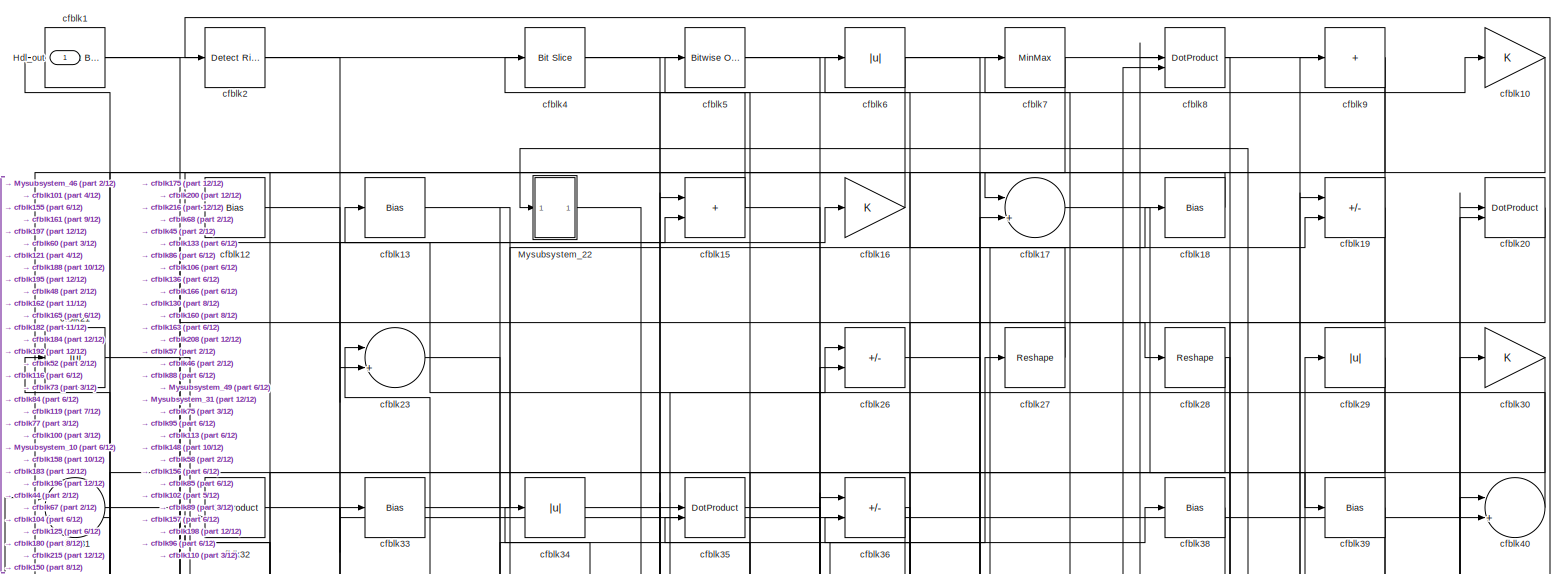
[diagram: root canvas - part 1/12, full width, top band]
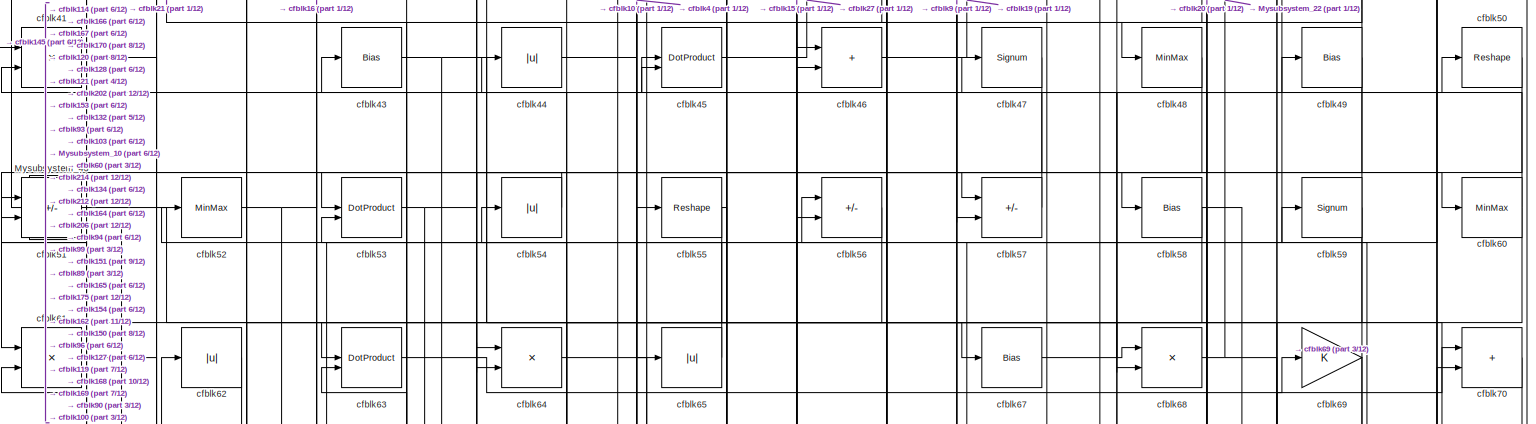
[diagram: root canvas - part 2/12, full width, top band]
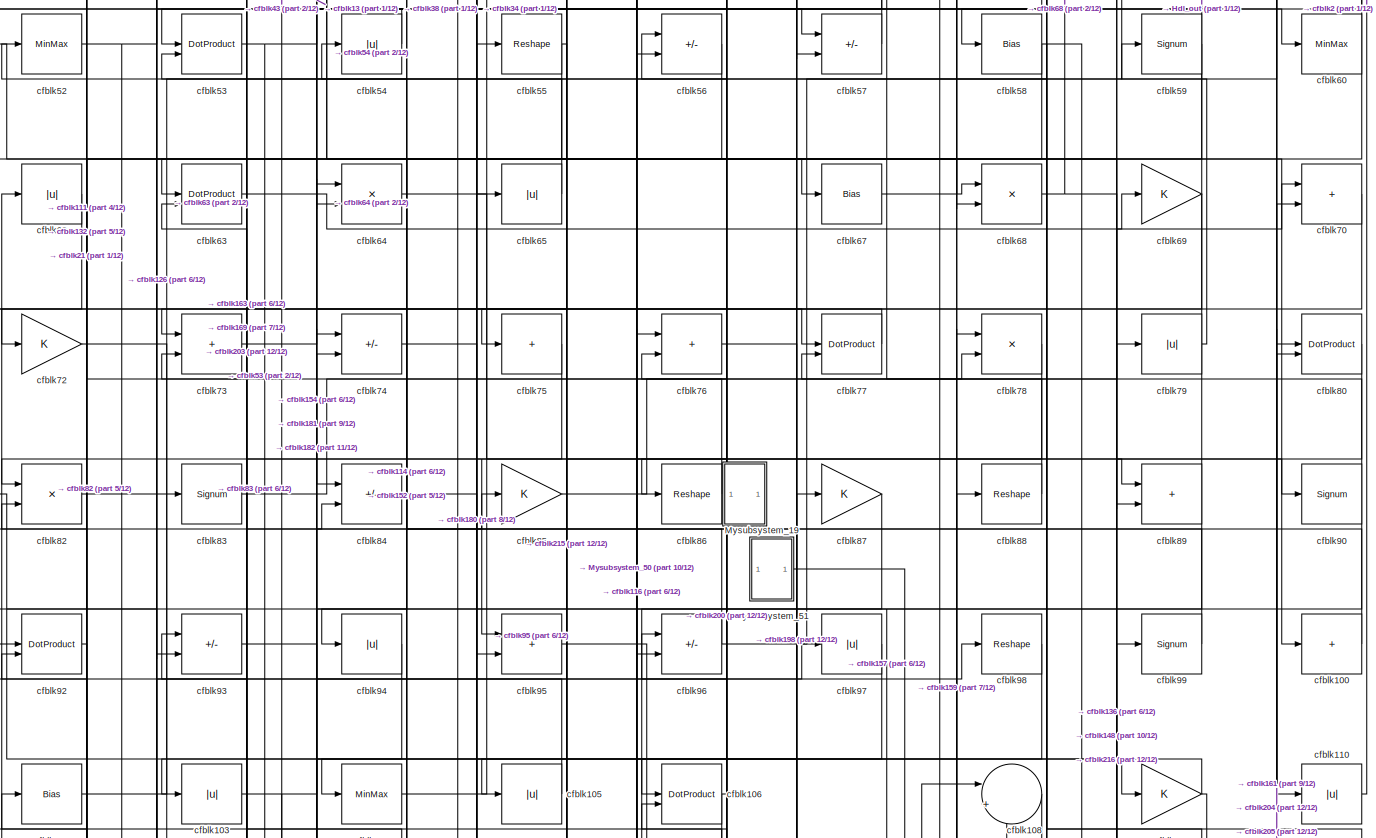
[diagram: root canvas - part 3/12, full width, middle band]
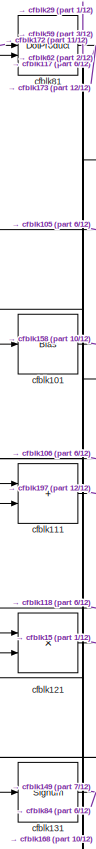
[diagram: root canvas - part 4/12, middle left region]
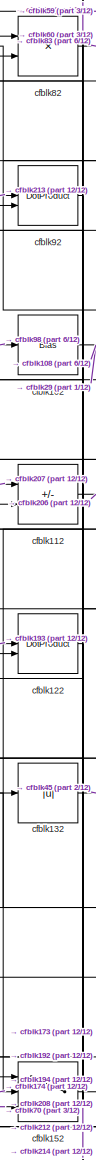
[diagram: root canvas - part 5/12, middle left region]
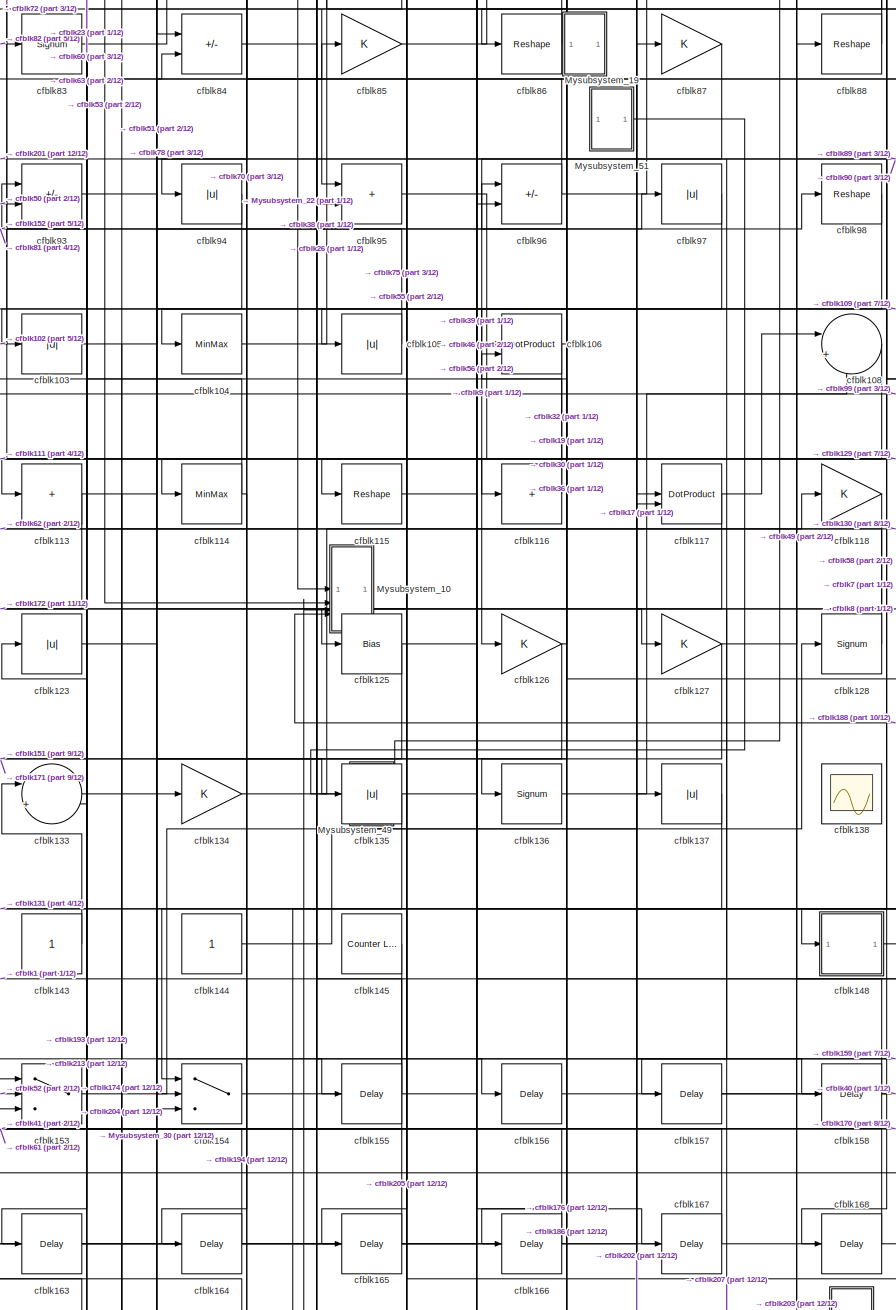
[diagram: root canvas - part 6/12, central region]
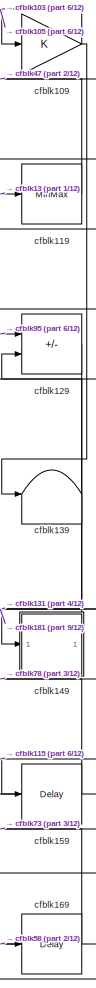
[diagram: root canvas - part 7/12, middle right region]
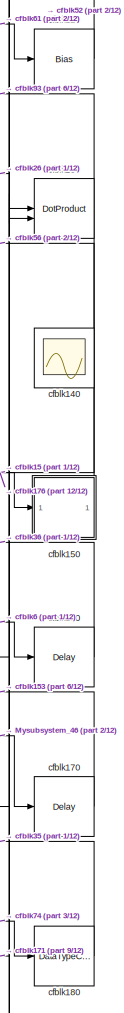
[diagram: root canvas - part 8/12, middle right region]
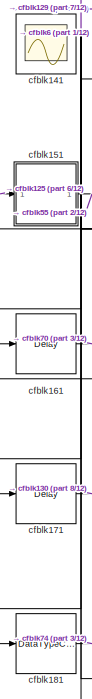
[diagram: root canvas - part 9/12, bottom left region]
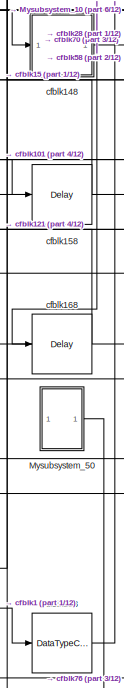
[diagram: root canvas - part 10/12, bottom right region]
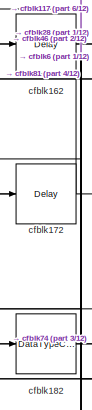
[diagram: root canvas - part 11/12, bottom left region]
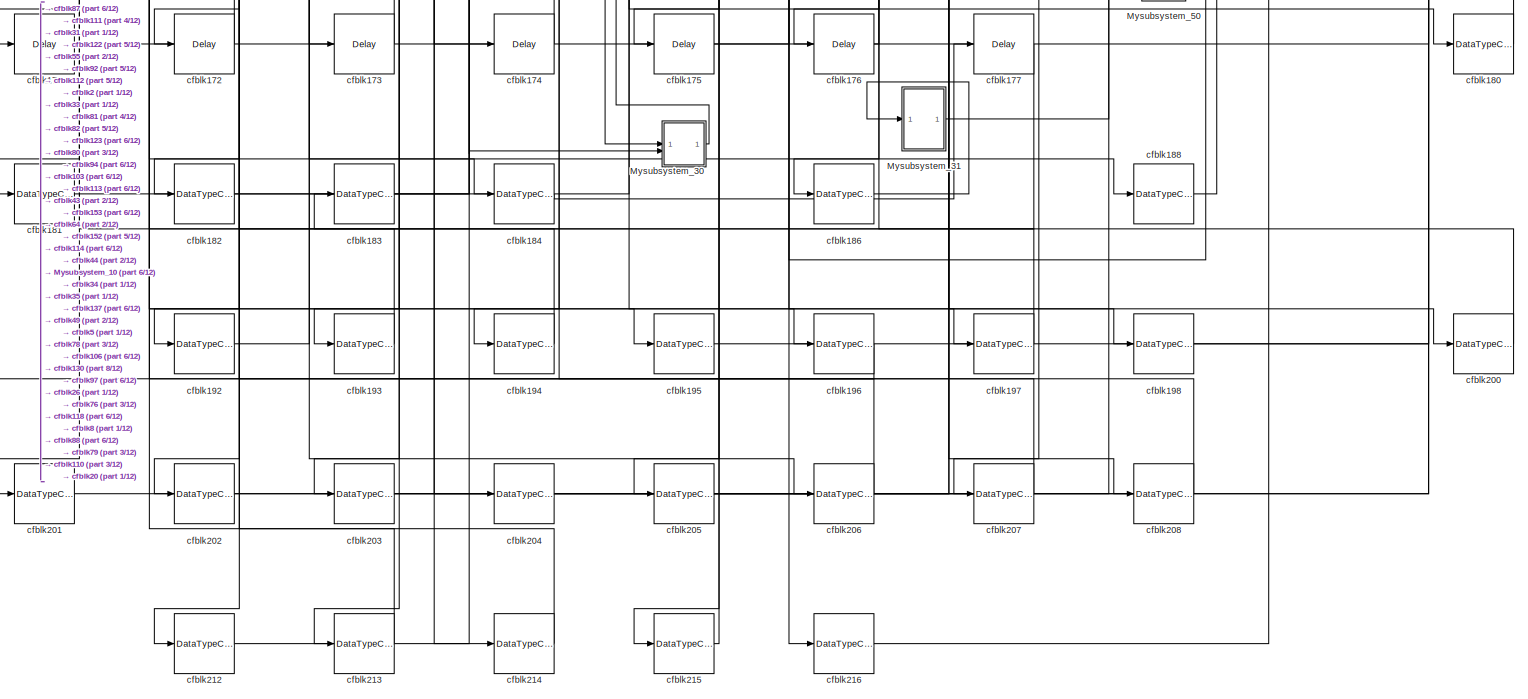
[diagram: root canvas - part 12/12, full width, bottom band]
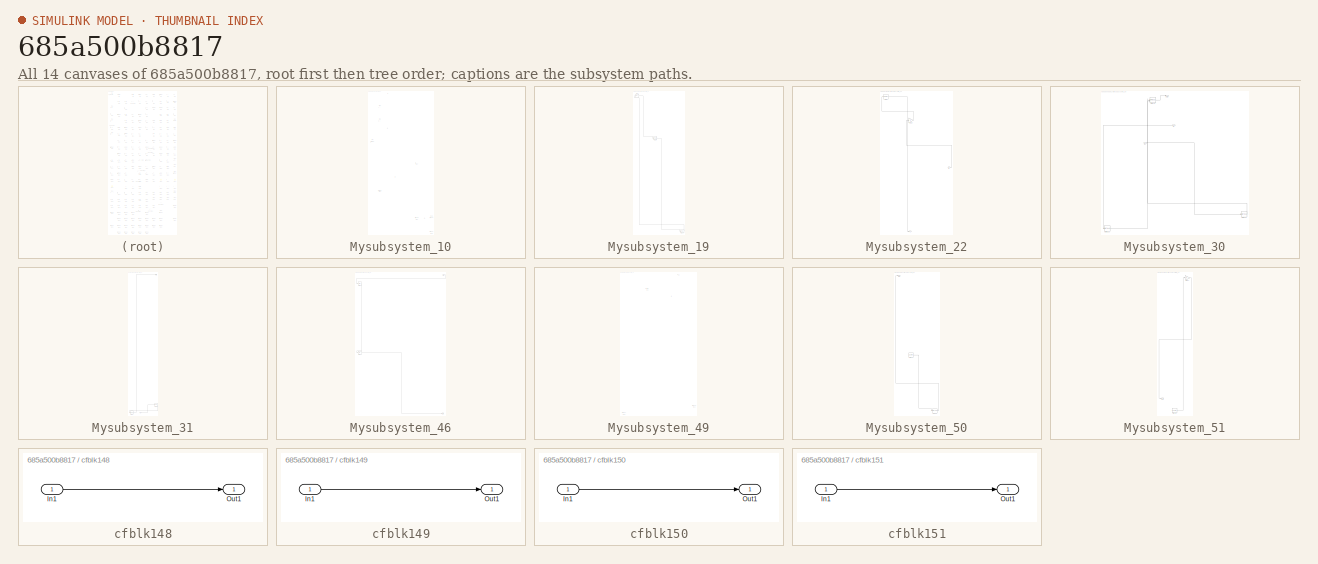
[diagram: thumbnail index - all 14 canvases of the model, root first then tree order]
MODEL slx_685a500b8817
KIND model
CONFIG AbsTol = auto
CONFIG EnableMultiTasking = off
CONFIG FixedStep = auto
CONFIG MaxStep = auto
CONFIG MinStep = auto
CONFIG RelTol = 1e-3
CONFIG SampleTimeConstraint = Unconstrained
CONFIG SolverName = VariableStepAuto
CONFIG StartTime = 0.0
CONFIG StopTime = 10.0
BLOCK [Outport] Hdl_out
  OutDataTypeStr = uint8
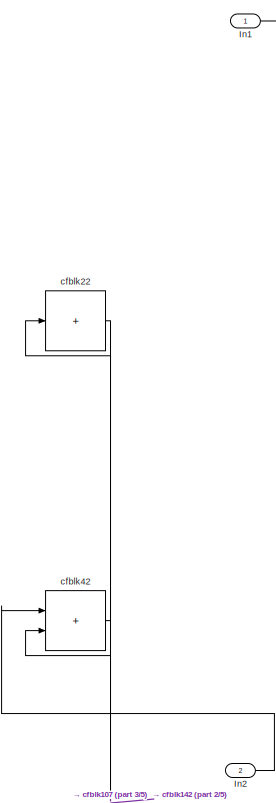
[diagram: Mysubsystem_10 - part 1/5, top left region]
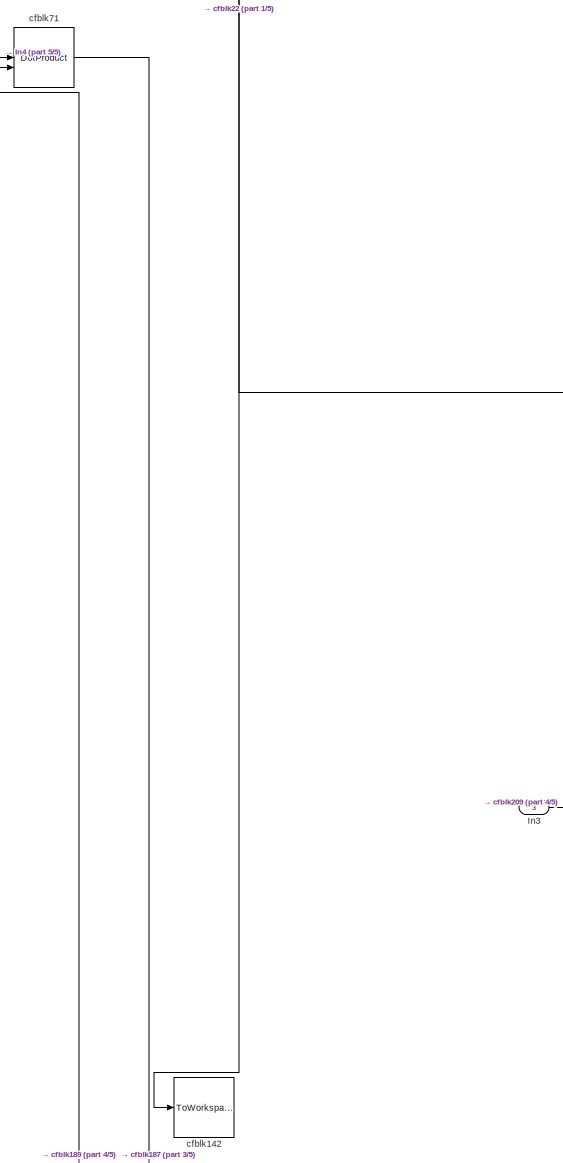
[diagram: Mysubsystem_10 - part 2/5, middle left region]
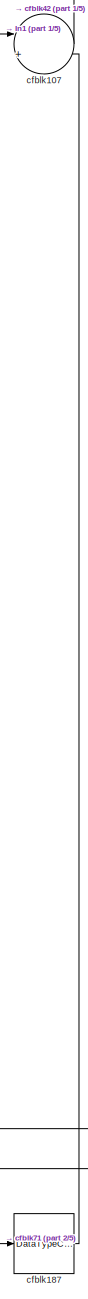
[diagram: Mysubsystem_10 - part 3/5, bottom right region]
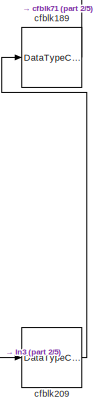
[diagram: Mysubsystem_10 - part 4/5, bottom right region]
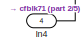
[diagram: Mysubsystem_10 - part 5/5, bottom right region]
BLOCK [SubSystem] Mysubsystem_10
  RTWFcnName = Mysubsystem_10
  RTWFcnNameOpts = User specified
  RTWFileNameOpts = Use function name
  RTWSystemCode = Reusable function
  TreatAsAtomicUnit = on
BLOCK [Inport] Mysubsystem_10/In1
BLOCK [Inport] Mysubsystem_10/In2
  Port = 2
BLOCK [Inport] Mysubsystem_10/In3
  Port = 3
BLOCK [Inport] Mysubsystem_10/In4
  Port = 4
BLOCK [Sum] Mysubsystem_10/cfblk107
  Inputs = |++
BLOCK [ToWorkspace] Mysubsystem_10/cfblk142
  MaxDataPoints = inf
  SampleTime = -1
  SaveFormat = Timeseries
  VariableName = simout
BLOCK [DataTypeConversion] Mysubsystem_10/cfblk187
  OutDataTypeStr = uint8
  RndMeth = Floor
  SaturateOnIntegerOverflow = off
BLOCK [DataTypeConversion] Mysubsystem_10/cfblk189
  OutDataTypeStr = uint8
  RndMeth = Floor
  SaturateOnIntegerOverflow = off
BLOCK [DataTypeConversion] Mysubsystem_10/cfblk209
  OutDataTypeStr = uint8
  RndMeth = Floor
  SaturateOnIntegerOverflow = off
BLOCK [Sum] Mysubsystem_10/cfblk22
  IconShape = rectangular
  Inputs = +
BLOCK [Sum] Mysubsystem_10/cfblk42
  IconShape = rectangular
BLOCK [DotProduct] Mysubsystem_10/cfblk71
  OutDataTypeStr = Inherit: Inherit via internal rule
BLOCK [SubSystem] Mysubsystem_19
  RTWFcnName = Mysubsystem_19
  RTWFcnNameOpts = User specified
  RTWFileNameOpts = Use function name
  RTWSystemCode = Reusable function
  TreatAsAtomicUnit = on
BLOCK [Abs] Mysubsystem_19/cfblk14
  SaturateOnIntegerOverflow = off
BLOCK [Delay] Mysubsystem_19/cfblk179
  InputPortMap = u0
  SampleTime = 1
BLOCK [Reshape] Mysubsystem_19/cfblk66
BLOCK [SubSystem] Mysubsystem_22
  RTWFcnName = Mysubsystem_22
  RTWFcnNameOpts = User specified
  RTWFileNameOpts = Use function name
  RTWSystemCode = Reusable function
  TreatAsAtomicUnit = on
BLOCK [Inport] Mysubsystem_22/In1
BLOCK [Gain] Mysubsystem_22/cfblk25
BLOCK [Reference] Mysubsystem_22/cfblk3  REF=hdlsllib/Logic and Bit
Operations/Compare
To Zero
  SourceBlock = hdlsllib/Logic and Bit\nOperations/Compare\nTo Zero
  SourceType = Compare To Zero
BLOCK [Outport] Mysubsystem_22/y
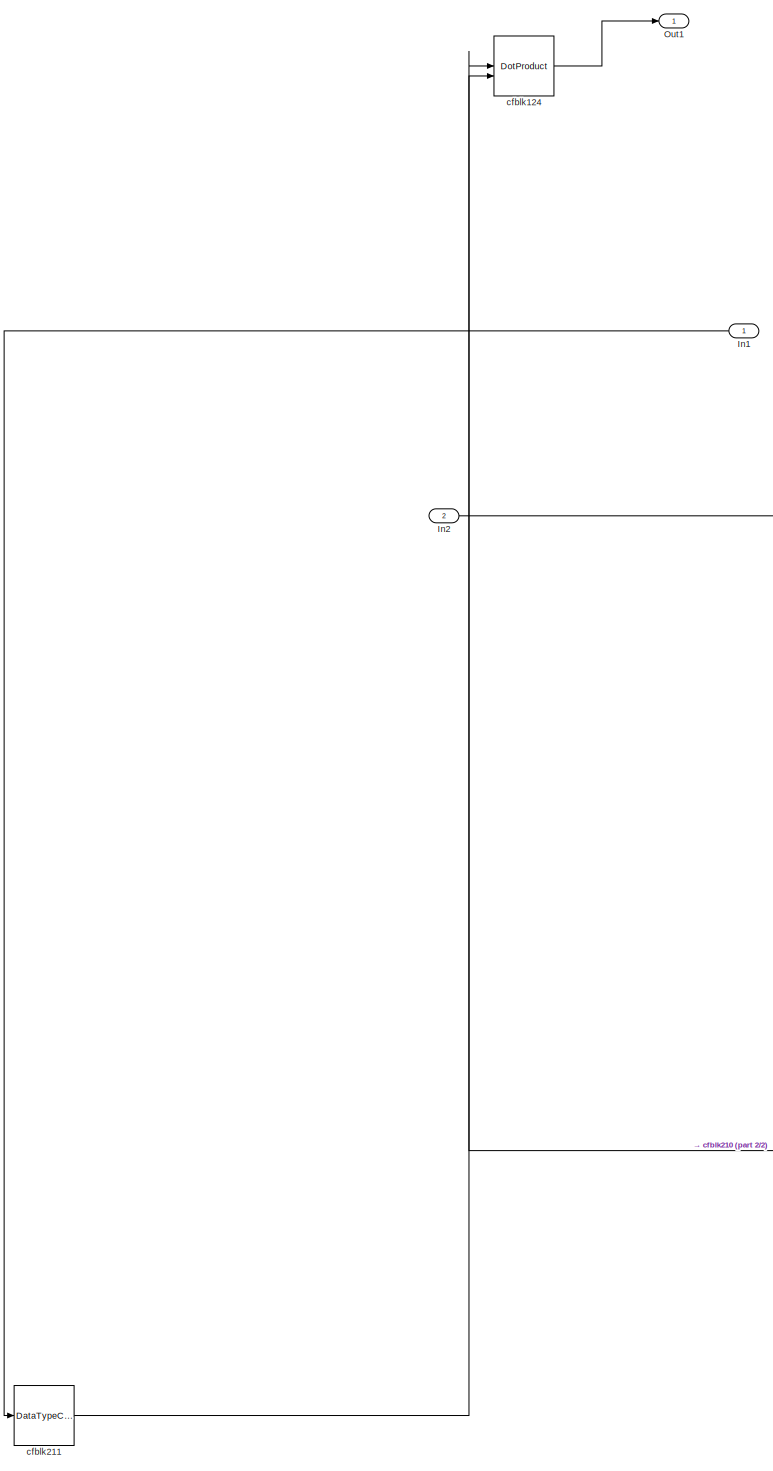
[diagram: Mysubsystem_30 - part 1/2, left side, full height]
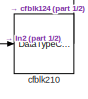
[diagram: Mysubsystem_30 - part 2/2, bottom right region]
BLOCK [SubSystem] Mysubsystem_30
  RTWFcnName = Mysubsystem_30
  RTWFcnNameOpts = User specified
  RTWFileNameOpts = Use function name
  RTWSystemCode = Reusable function
  TreatAsAtomicUnit = on
BLOCK [Inport] Mysubsystem_30/In1
BLOCK [Inport] Mysubsystem_30/In2
  Port = 2
BLOCK [Outport] Mysubsystem_30/Out1
BLOCK [DotProduct] Mysubsystem_30/cfblk124
  OutDataTypeStr = Inherit: Inherit via internal rule
BLOCK [DataTypeConversion] Mysubsystem_30/cfblk210
  OutDataTypeStr = uint8
  RndMeth = Floor
  SaturateOnIntegerOverflow = off
BLOCK [DataTypeConversion] Mysubsystem_30/cfblk211
  OutDataTypeStr = uint8
  RndMeth = Floor
  SaturateOnIntegerOverflow = off
BLOCK [SubSystem] Mysubsystem_31
  RTWFcnName = Mysubsystem_31
  RTWFcnNameOpts = User specified
  RTWFileNameOpts = Use function name
  RTWSystemCode = Reusable function
  TreatAsAtomicUnit = on
BLOCK [Inport] Mysubsystem_31/In1
BLOCK [Outport] Mysubsystem_31/Out1
BLOCK [Delay] Mysubsystem_31/cfblk178
  InputPortMap = u0
  SampleTime = 1
BLOCK [DataTypeConversion] Mysubsystem_31/cfblk185
  OutDataTypeStr = uint8
  RndMeth = Floor
  SaturateOnIntegerOverflow = off
BLOCK [SubSystem] Mysubsystem_46
  RTWFcnName = Mysubsystem_46
  RTWFcnNameOpts = User specified
  RTWFileNameOpts = Use function name
  RTWSystemCode = Reusable function
  TreatAsAtomicUnit = on
BLOCK [Inport] Mysubsystem_46/In1
BLOCK [Outport] Mysubsystem_46/Out1
BLOCK [Bias] Mysubsystem_46/cfblk11
  Bias = 0.0
  SaturateOnIntegerOverflow = off
BLOCK [Abs] Mysubsystem_46/cfblk91
  SaturateOnIntegerOverflow = off
BLOCK [SubSystem] Mysubsystem_49
  RTWFcnName = Mysubsystem_49
  RTWFcnNameOpts = User specified
  RTWFileNameOpts = Use function name
  RTWSystemCode = Reusable function
  TreatAsAtomicUnit = on
BLOCK [Inport] Mysubsystem_49/In1
BLOCK [Outport] Mysubsystem_49/Out1
BLOCK [DataTypeConversion] Mysubsystem_49/cfblk190
  OutDataTypeStr = uint8
  RndMeth = Floor
  SaturateOnIntegerOverflow = off
BLOCK [DataTypeConversion] Mysubsystem_49/cfblk191
  OutDataTypeStr = uint8
  RndMeth = Floor
  SaturateOnIntegerOverflow = off
BLOCK [MinMax] Mysubsystem_49/cfblk24
BLOCK [SubSystem] Mysubsystem_50
  RTWFcnName = Mysubsystem_50
  RTWFcnNameOpts = User specified
  RTWFileNameOpts = Use function name
  RTWSystemCode = Reusable function
  TreatAsAtomicUnit = on
BLOCK [Outport] Mysubsystem_50/Out1
BLOCK [Reference] Mysubsystem_50/cfblk147  REF=hdlsllib/Sources/Counter
Free-Running
  SourceBlock = hdlsllib/Sources/Counter\nFree-Running
  SourceType = Counter Free-Running
BLOCK [DataTypeConversion] Mysubsystem_50/cfblk199
  OutDataTypeStr = uint8
  RndMeth = Floor
  SaturateOnIntegerOverflow = off
BLOCK [SubSystem] Mysubsystem_51
  RTWFcnName = Mysubsystem_51
  RTWFcnNameOpts = User specified
  RTWFileNameOpts = Use function name
  RTWSystemCode = Reusable function
  TreatAsAtomicUnit = on
BLOCK [Outport] Mysubsystem_51/Out1
BLOCK [Reference] Mysubsystem_51/cfblk146  REF=hdlsllib/Sources/Counter
Limited
  SourceBlock = hdlsllib/Sources/Counter\nLimited
  SourceType = Counter Limited
BLOCK [Gain] Mysubsystem_51/cfblk37
BLOCK [Reference] cfblk1  REF=simulink/Logic and Bit
Operations/Extract Bits
  LibrarySourceBlock = hdlsllib/Logic and Bit\nOperations/Extract Bits
  SourceBlock = simulink/Logic and Bit\nOperations/Extract Bits
  SourceType = Extract Bits
BLOCK [Gain] cfblk10
  OutDataTypeStr = uint8
BLOCK [Sum] cfblk100
  IconShape = rectangular
  Inputs = +
  OutDataTypeStr = uint8
BLOCK [Bias] cfblk101
  Bias = 0.0
  SaturateOnIntegerOverflow = off
BLOCK [Bias] cfblk102
  Bias = 0.0
  SaturateOnIntegerOverflow = off
BLOCK [Abs] cfblk103
  OutDataTypeStr = uint8
  SaturateOnIntegerOverflow = off
BLOCK [MinMax] cfblk104
  OutDataTypeStr = uint8
BLOCK [Abs] cfblk105
  OutDataTypeStr = uint8
  SaturateOnIntegerOverflow = off
BLOCK [DotProduct] cfblk106
  OutDataTypeStr = uint8
BLOCK [Sum] cfblk108
  Inputs = |++
  OutDataTypeStr = uint8
BLOCK [Gain] cfblk109
  OutDataTypeStr = uint8
BLOCK [Abs] cfblk110
  OutDataTypeStr = uint8
  SaturateOnIntegerOverflow = off
BLOCK [Sum] cfblk111
  IconShape = rectangular
  OutDataTypeStr = uint8
BLOCK [Sum] cfblk112
  IconShape = rectangular
  Inputs = +-
  OutDataTypeStr = uint8
BLOCK [Sum] cfblk113
  IconShape = rectangular
  Inputs = +
  OutDataTypeStr = uint8
BLOCK [MinMax] cfblk114
  OutDataTypeStr = uint8
BLOCK [Reshape] cfblk115
BLOCK [Sum] cfblk116
  IconShape = rectangular
  Inputs = +
  OutDataTypeStr = uint8
BLOCK [DotProduct] cfblk117
  OutDataTypeStr = uint8
BLOCK [Gain] cfblk118
  OutDataTypeStr = uint8
BLOCK [MinMax] cfblk119
  OutDataTypeStr = uint8
BLOCK [Bias] cfblk12
  Bias = 0.0
  SaturateOnIntegerOverflow = off
BLOCK [Bias] cfblk120
  Bias = 0.0
  SaturateOnIntegerOverflow = off
BLOCK [Product] cfblk121
  Inputs = */
  OutDataTypeStr = uint8
  RndMeth = Zero
  SaturateOnIntegerOverflow = on
BLOCK [DotProduct] cfblk122
  OutDataTypeStr = uint8
BLOCK [Abs] cfblk123
  OutDataTypeStr = uint8
  SaturateOnIntegerOverflow = off
BLOCK [Bias] cfblk125
  Bias = 0.0
  SaturateOnIntegerOverflow = off
BLOCK [Gain] cfblk126
  OutDataTypeStr = uint8
BLOCK [Gain] cfblk127
  OutDataTypeStr = uint8
BLOCK [Signum] cfblk128
BLOCK [Sum] cfblk129
  IconShape = rectangular
  Inputs = +-
  OutDataTypeStr = uint8
BLOCK [Bias] cfblk13
  Bias = 0.0
  SaturateOnIntegerOverflow = off
BLOCK [DotProduct] cfblk130
  OutDataTypeStr = uint8
BLOCK [Signum] cfblk131
BLOCK [Abs] cfblk132
  OutDataTypeStr = uint8
  SaturateOnIntegerOverflow = off
BLOCK [Sum] cfblk133
  Inputs = |++
  OutDataTypeStr = uint8
BLOCK [Gain] cfblk134
  OutDataTypeStr = uint8
BLOCK [Abs] cfblk135
  OutDataTypeStr = uint8
  SaturateOnIntegerOverflow = off
BLOCK [Signum] cfblk136
BLOCK [Abs] cfblk137
  OutDataTypeStr = uint8
  SaturateOnIntegerOverflow = off
BLOCK [Scope] cfblk138
  Floating = on
  NumInputPorts = 1
  ScopeSpecificationString = Simulink.scopes.TimeScopeBlockCfg('CurrentConfiguration', extmgr.ConfigurationSet(extmgr.Configuration('Core','General UI',true,'FigureColor',[0.156862745098039 0.156862745098039 0.156862745098039]),extmgr.Configuration('Core','Source UI',true),extmgr.Configuration('Sources','WiredSimulink',true,'DataLoggingVariableName','ScopeData1','DataLoggingSaveFormat','StructureWithTime','DataLoggingLimitDat...<+2713ch>  <repeated x3 — deduplicated; at blocks: cfblk138, cfblk140, cfblk141>
BLOCK [Terminator] cfblk139
BLOCK [Scope] cfblk140
  Floating = on
  NumInputPorts = 1
BLOCK [Scope] cfblk141
  Floating = on
  NumInputPorts = 1
BLOCK [Constant] cfblk143
  OutDataTypeStr = uint8
  SampleTime = -1
BLOCK [Constant] cfblk144
  OutDataTypeStr = uint8
  SampleTime = -1
BLOCK [Reference] cfblk145  REF=hdlsllib/Sources/Counter
Limited
  SourceBlock = hdlsllib/Sources/Counter\nLimited
  SourceType = Counter Limited
BLOCK [SubSystem] cfblk148
  LibrarySourceBlock = hdlsllib/Ports &\nSubsystems/Subsystem
BLOCK [Inport] cfblk148/In1
BLOCK [Outport] cfblk148/Out1
BLOCK [SubSystem] cfblk149
  LibrarySourceBlock = hdlsllib/Ports &\nSubsystems/Subsystem
BLOCK [Inport] cfblk149/In1
BLOCK [Outport] cfblk149/Out1
BLOCK [Sum] cfblk15
  IconShape = rectangular
  OutDataTypeStr = uint8
BLOCK [SubSystem] cfblk150
  LibrarySourceBlock = hdlsllib/Ports &\nSubsystems/Subsystem
BLOCK [Inport] cfblk150/In1
BLOCK [Outport] cfblk150/Out1
BLOCK [SubSystem] cfblk151
  LibrarySourceBlock = hdlsllib/Ports &\nSubsystems/Subsystem
BLOCK [Inport] cfblk151/In1
BLOCK [Outport] cfblk151/Out1
BLOCK [Switch] cfblk152
  InputSameDT = off
  OutDataTypeStr = uint8
  SaturateOnIntegerOverflow = off
BLOCK [Switch] cfblk153
  InputSameDT = off
  OutDataTypeStr = uint8
  SaturateOnIntegerOverflow = off
BLOCK [Switch] cfblk154
  InputSameDT = off
  OutDataTypeStr = uint8
  SaturateOnIntegerOverflow = off
BLOCK [Delay] cfblk155
  InputPortMap = u0
  SampleTime = 1
BLOCK [Delay] cfblk156
  InputPortMap = u0
  SampleTime = 1
BLOCK [Delay] cfblk157
  InputPortMap = u0
  SampleTime = 1
BLOCK [Delay] cfblk158
  InputPortMap = u0
  SampleTime = 1
BLOCK [Delay] cfblk159
  InputPortMap = u0
  SampleTime = 1
BLOCK [Gain] cfblk16
  OutDataTypeStr = uint8
BLOCK [Delay] cfblk160
  InputPortMap = u0
  SampleTime = 1
BLOCK [Delay] cfblk161
  InputPortMap = u0
  SampleTime = 1
BLOCK [Delay] cfblk162
  InputPortMap = u0
  SampleTime = 1
BLOCK [Delay] cfblk163
  InputPortMap = u0
  SampleTime = 1
BLOCK [Delay] cfblk164
  InputPortMap = u0
  SampleTime = 1
BLOCK [Delay] cfblk165
  InputPortMap = u0
  SampleTime = 1
BLOCK [Delay] cfblk166
  InputPortMap = u0
  SampleTime = 1
BLOCK [Delay] cfblk167
  InputPortMap = u0
  SampleTime = 1
BLOCK [Delay] cfblk168
  InputPortMap = u0
  SampleTime = 1
BLOCK [Delay] cfblk169
  InputPortMap = u0
  SampleTime = 1
BLOCK [Sum] cfblk17
  Inputs = |++
  OutDataTypeStr = uint8
BLOCK [Delay] cfblk170
  InputPortMap = u0
  SampleTime = 1
BLOCK [Delay] cfblk171
  InputPortMap = u0
  SampleTime = 1
BLOCK [Delay] cfblk172
  InputPortMap = u0
  SampleTime = 1
BLOCK [Delay] cfblk173
  InputPortMap = u0
  SampleTime = 1
BLOCK [Delay] cfblk174
  InputPortMap = u0
  SampleTime = 1
BLOCK [Delay] cfblk175
  InputPortMap = u0
  SampleTime = 1
BLOCK [Delay] cfblk176
  InputPortMap = u0
  SampleTime = 1
BLOCK [Delay] cfblk177
  InputPortMap = u0
  SampleTime = 1
BLOCK [Bias] cfblk18
  Bias = 0.0
  SaturateOnIntegerOverflow = off
BLOCK [DataTypeConversion] cfblk180
  OutDataTypeStr = uint8
  RndMeth = Floor
  SaturateOnIntegerOverflow = off
BLOCK [DataTypeConversion] cfblk181
  OutDataTypeStr = uint8
  RndMeth = Floor
  SaturateOnIntegerOverflow = off
BLOCK [DataTypeConversion] cfblk182
  OutDataTypeStr = uint8
  RndMeth = Floor
  SaturateOnIntegerOverflow = off
BLOCK [DataTypeConversion] cfblk183
  OutDataTypeStr = uint8
  RndMeth = Floor
  SaturateOnIntegerOverflow = off
BLOCK [DataTypeConversion] cfblk184
  OutDataTypeStr = uint8
  RndMeth = Floor
  SaturateOnIntegerOverflow = off
BLOCK [DataTypeConversion] cfblk186
  OutDataTypeStr = uint8
  RndMeth = Floor
  SaturateOnIntegerOverflow = off
BLOCK [DataTypeConversion] cfblk188
  OutDataTypeStr = uint8
  RndMeth = Floor
  SaturateOnIntegerOverflow = off
BLOCK [Sum] cfblk19
  IconShape = rectangular
  Inputs = +-
  OutDataTypeStr = uint8
BLOCK [DataTypeConversion] cfblk192
  OutDataTypeStr = uint8
  RndMeth = Floor
  SaturateOnIntegerOverflow = off
BLOCK [DataTypeConversion] cfblk193
  OutDataTypeStr = uint8
  RndMeth = Floor
  SaturateOnIntegerOverflow = off
BLOCK [DataTypeConversion] cfblk194
  OutDataTypeStr = uint8
  RndMeth = Floor
  SaturateOnIntegerOverflow = off
BLOCK [DataTypeConversion] cfblk195
  OutDataTypeStr = uint8
  RndMeth = Floor
  SaturateOnIntegerOverflow = off
BLOCK [DataTypeConversion] cfblk196
  OutDataTypeStr = uint8
  RndMeth = Floor
  SaturateOnIntegerOverflow = off
BLOCK [DataTypeConversion] cfblk197
  OutDataTypeStr = uint8
  RndMeth = Floor
  SaturateOnIntegerOverflow = off
BLOCK [DataTypeConversion] cfblk198
  OutDataTypeStr = uint8
  RndMeth = Floor
  SaturateOnIntegerOverflow = off
BLOCK [Reference] cfblk2  REF=hdlsllib/Logic and Bit
Operations/Detect Rise
Positive
  SourceBlock = hdlsllib/Logic and Bit\nOperations/Detect Rise\nPositive
  SourceType = Detect Rise Positive
BLOCK [DotProduct] cfblk20
  OutDataTypeStr = uint8
BLOCK [DataTypeConversion] cfblk200
  OutDataTypeStr = uint8
  RndMeth = Floor
  SaturateOnIntegerOverflow = off
BLOCK [DataTypeConversion] cfblk201
  OutDataTypeStr = uint8
  RndMeth = Floor
  SaturateOnIntegerOverflow = off
BLOCK [DataTypeConversion] cfblk202
  OutDataTypeStr = uint8
  RndMeth = Floor
  SaturateOnIntegerOverflow = off
BLOCK [DataTypeConversion] cfblk203
  OutDataTypeStr = uint8
  RndMeth = Floor
  SaturateOnIntegerOverflow = off
BLOCK [DataTypeConversion] cfblk204
  OutDataTypeStr = uint8
  RndMeth = Floor
  SaturateOnIntegerOverflow = off
BLOCK [DataTypeConversion] cfblk205
  OutDataTypeStr = uint8
  RndMeth = Floor
  SaturateOnIntegerOverflow = off
BLOCK [DataTypeConversion] cfblk206
  OutDataTypeStr = uint8
  RndMeth = Floor
  SaturateOnIntegerOverflow = off
BLOCK [DataTypeConversion] cfblk207
  OutDataTypeStr = uint8
  RndMeth = Floor
  SaturateOnIntegerOverflow = off
BLOCK [DataTypeConversion] cfblk208
  OutDataTypeStr = uint8
  RndMeth = Floor
  SaturateOnIntegerOverflow = off
BLOCK [Abs] cfblk21
  OutDataTypeStr = uint8
  SaturateOnIntegerOverflow = off
BLOCK [DataTypeConversion] cfblk212
  OutDataTypeStr = uint8
  RndMeth = Floor
  SaturateOnIntegerOverflow = off
BLOCK [DataTypeConversion] cfblk213
  OutDataTypeStr = uint8
  RndMeth = Floor
  SaturateOnIntegerOverflow = off
BLOCK [DataTypeConversion] cfblk214
  OutDataTypeStr = uint8
  RndMeth = Floor
  SaturateOnIntegerOverflow = off
BLOCK [DataTypeConversion] cfblk215
  OutDataTypeStr = uint8
  RndMeth = Floor
  SaturateOnIntegerOverflow = off
BLOCK [DataTypeConversion] cfblk216
  OutDataTypeStr = uint8
  RndMeth = Floor
  SaturateOnIntegerOverflow = off
BLOCK [Sum] cfblk23
  Inputs = |++
  OutDataTypeStr = uint8
BLOCK [Sum] cfblk26
  IconShape = rectangular
  Inputs = +-
  OutDataTypeStr = uint8
BLOCK [Reshape] cfblk27
BLOCK [Reshape] cfblk28
BLOCK [Abs] cfblk29
  OutDataTypeStr = uint8
  SaturateOnIntegerOverflow = off
BLOCK [Gain] cfblk30
  OutDataTypeStr = uint8
BLOCK [Sum] cfblk31
  Inputs = |++
  OutDataTypeStr = uint8
BLOCK [DotProduct] cfblk32
  OutDataTypeStr = uint8
BLOCK [Bias] cfblk33
  Bias = 0.0
  SaturateOnIntegerOverflow = off
BLOCK [Abs] cfblk34
  OutDataTypeStr = uint8
  SaturateOnIntegerOverflow = off
BLOCK [DotProduct] cfblk35
  OutDataTypeStr = uint8
BLOCK [Sum] cfblk36
  IconShape = rectangular
  Inputs = +-
  OutDataTypeStr = uint8
BLOCK [Bias] cfblk38
  Bias = 0.0
  SaturateOnIntegerOverflow = off
BLOCK [Bias] cfblk39
  Bias = 0.0
  SaturateOnIntegerOverflow = off
BLOCK [Reference] cfblk4  REF=hdlsllib/Logic and Bit
Operations/Bit Slice
  SourceBlock = hdlsllib/Logic and Bit\nOperations/Bit Slice
  SourceType = Bit Slice
BLOCK [Sum] cfblk40
  Inputs = |++
  OutDataTypeStr = uint8
BLOCK [Product] cfblk41
  Inputs = */
  OutDataTypeStr = uint8
  RndMeth = Zero
  SaturateOnIntegerOverflow = on
BLOCK [Bias] cfblk43
  Bias = 0.0
  SaturateOnIntegerOverflow = off
BLOCK [Abs] cfblk44
  OutDataTypeStr = uint8
  SaturateOnIntegerOverflow = off
BLOCK [DotProduct] cfblk45
  OutDataTypeStr = uint8
BLOCK [Sum] cfblk46
  IconShape = rectangular
  OutDataTypeStr = uint8
BLOCK [Signum] cfblk47
BLOCK [MinMax] cfblk48
  OutDataTypeStr = uint8
BLOCK [Bias] cfblk49
  Bias = 0.0
  SaturateOnIntegerOverflow = off
BLOCK [Reference] cfblk5  REF=simulink/Logic and Bit
Operations/Bitwise
Operator
  LibrarySourceBlock = hdlsllib/Logic and Bit\nOperations/Bitwise\nOperator
  SourceBlock = simulink/Logic and Bit\nOperations/Bitwise\nOperator
  SourceType = Bitwise Operator
BLOCK [Reshape] cfblk50
BLOCK [Sum] cfblk51
  IconShape = rectangular
  Inputs = +-
  OutDataTypeStr = uint8
BLOCK [MinMax] cfblk52
  OutDataTypeStr = uint8
BLOCK [DotProduct] cfblk53
  OutDataTypeStr = uint8
BLOCK [Abs] cfblk54
  OutDataTypeStr = uint8
  SaturateOnIntegerOverflow = off
BLOCK [Reshape] cfblk55
BLOCK [Sum] cfblk56
  IconShape = rectangular
  Inputs = +-
  OutDataTypeStr = uint8
BLOCK [Sum] cfblk57
  IconShape = rectangular
  Inputs = +-
  OutDataTypeStr = uint8
BLOCK [Bias] cfblk58
  Bias = 0.0
  SaturateOnIntegerOverflow = off
BLOCK [Signum] cfblk59
BLOCK [Abs] cfblk6
  OutDataTypeStr = uint8
  SaturateOnIntegerOverflow = off
BLOCK [MinMax] cfblk60
  OutDataTypeStr = uint8
BLOCK [Product] cfblk61
  Inputs = */
  OutDataTypeStr = uint8
  RndMeth = Zero
  SaturateOnIntegerOverflow = on
BLOCK [Abs] cfblk62
  OutDataTypeStr = uint8
  SaturateOnIntegerOverflow = off
BLOCK [DotProduct] cfblk63
  OutDataTypeStr = uint8
BLOCK [Product] cfblk64
  Inputs = */
  OutDataTypeStr = uint8
  RndMeth = Zero
  SaturateOnIntegerOverflow = on
BLOCK [Abs] cfblk65
  OutDataTypeStr = uint8
  SaturateOnIntegerOverflow = off
BLOCK [Bias] cfblk67
  Bias = 0.0
  SaturateOnIntegerOverflow = off
BLOCK [Product] cfblk68
  Inputs = */
  OutDataTypeStr = uint8
  RndMeth = Zero
  SaturateOnIntegerOverflow = on
BLOCK [Gain] cfblk69
  OutDataTypeStr = uint8
BLOCK [MinMax] cfblk7
  OutDataTypeStr = uint8
BLOCK [Sum] cfblk70
  IconShape = rectangular
  OutDataTypeStr = uint8
BLOCK [Gain] cfblk72
  OutDataTypeStr = uint8
BLOCK [Sum] cfblk73
  IconShape = rectangular
  OutDataTypeStr = uint8
BLOCK [Sum] cfblk74
  IconShape = rectangular
  Inputs = +-
  OutDataTypeStr = uint8
BLOCK [Sum] cfblk75
  IconShape = rectangular
  Inputs = +
  OutDataTypeStr = uint8
BLOCK [Sum] cfblk76
  IconShape = rectangular
  OutDataTypeStr = uint8
BLOCK [DotProduct] cfblk77
  OutDataTypeStr = uint8
BLOCK [Product] cfblk78
  Inputs = */
  OutDataTypeStr = uint8
  RndMeth = Zero
  SaturateOnIntegerOverflow = on
BLOCK [Abs] cfblk79
  OutDataTypeStr = uint8
  SaturateOnIntegerOverflow = off
BLOCK [DotProduct] cfblk8
  OutDataTypeStr = uint8
BLOCK [DotProduct] cfblk80
  OutDataTypeStr = uint8
BLOCK [DotProduct] cfblk81
  OutDataTypeStr = uint8
BLOCK [Product] cfblk82
  Inputs = */
  OutDataTypeStr = uint8
  RndMeth = Zero
  SaturateOnIntegerOverflow = on
BLOCK [Signum] cfblk83
BLOCK [Sum] cfblk84
  IconShape = rectangular
  Inputs = +-
  OutDataTypeStr = uint8
BLOCK [Gain] cfblk85
  OutDataTypeStr = uint8
BLOCK [Reshape] cfblk86
BLOCK [Gain] cfblk87
  OutDataTypeStr = uint8
BLOCK [Reshape] cfblk88
BLOCK [Sum] cfblk89
  IconShape = rectangular
  OutDataTypeStr = uint8
BLOCK [Sum] cfblk9
  IconShape = rectangular
  Inputs = +
  OutDataTypeStr = uint8
BLOCK [Signum] cfblk90
BLOCK [DotProduct] cfblk92
  OutDataTypeStr = uint8
BLOCK [Sum] cfblk93
  IconShape = rectangular
  Inputs = +-
  OutDataTypeStr = uint8
BLOCK [Abs] cfblk94
  OutDataTypeStr = uint8
  SaturateOnIntegerOverflow = off
BLOCK [Sum] cfblk95
  IconShape = rectangular
  OutDataTypeStr = uint8
BLOCK [Sum] cfblk96
  IconShape = rectangular
  Inputs = +-
  OutDataTypeStr = uint8
BLOCK [Abs] cfblk97
  OutDataTypeStr = uint8
  SaturateOnIntegerOverflow = off
BLOCK [Reshape] cfblk98
BLOCK [Signum] cfblk99
LINE Mysubsystem_10/In1:1 -> Mysubsystem_10/cfblk107:1
LINE Mysubsystem_10/In2:1 -> Mysubsystem_10/cfblk42:1
LINE Mysubsystem_10/In3:1 -> Mysubsystem_10/cfblk209:1
LINE Mysubsystem_10/In4:1 -> Mysubsystem_10/cfblk71:1
LINE Mysubsystem_10/cfblk107:1 -> Mysubsystem_10/cfblk42:2
LINE Mysubsystem_10/cfblk187:1 -> Mysubsystem_10/cfblk107:2
LINE Mysubsystem_10/cfblk189:1 -> Mysubsystem_10/cfblk71:2
LINE Mysubsystem_10/cfblk209:1 -> Mysubsystem_10/cfblk189:1
LINE Mysubsystem_10/cfblk22:1 -> Mysubsystem_10/cfblk142:1
LINE Mysubsystem_10/cfblk42:1 -> Mysubsystem_10/cfblk22:1
LINE Mysubsystem_10/cfblk71:1 -> Mysubsystem_10/cfblk187:1
LINE Mysubsystem_19/cfblk14:1 -> Mysubsystem_19/cfblk66:1
LINE Mysubsystem_19/cfblk179:1 -> Mysubsystem_19/cfblk14:1
LINE Mysubsystem_19/cfblk66:1 -> Mysubsystem_19/cfblk179:1
LINE Mysubsystem_22/In1:1 -> Mysubsystem_22/cfblk25:1
LINE Mysubsystem_22/cfblk25:1 -> Mysubsystem_22/cfblk3:1
LINE Mysubsystem_22/cfblk3:1 -> Mysubsystem_22/y:1
LINE Mysubsystem_22:1 -> Mysubsystem_10:1
LINE Mysubsystem_30/In1:1 -> Mysubsystem_30/cfblk211:1
LINE Mysubsystem_30/In2:1 -> Mysubsystem_30/cfblk210:1
LINE Mysubsystem_30/cfblk124:1 -> Mysubsystem_30/Out1:1
LINE Mysubsystem_30/cfblk210:1 -> Mysubsystem_30/cfblk124:1
LINE Mysubsystem_30/cfblk211:1 -> Mysubsystem_30/cfblk124:2
LINE Mysubsystem_30:1 -> Mysubsystem_10:3
LINE Mysubsystem_31/In1:1 -> Mysubsystem_31/cfblk178:1
LINE Mysubsystem_31/cfblk178:1 -> Mysubsystem_31/cfblk185:1
LINE Mysubsystem_31/cfblk185:1 -> Mysubsystem_31/Out1:1
LINE Mysubsystem_31:1 -> cfblk8:1
LINE Mysubsystem_46/In1:1 -> Mysubsystem_46/cfblk11:1
LINE Mysubsystem_46/cfblk11:1 -> Mysubsystem_46/cfblk91:1
LINE Mysubsystem_46/cfblk91:1 -> Mysubsystem_46/Out1:1
LINE Mysubsystem_46:1 -> cfblk170:1
LINE Mysubsystem_49/In1:1 -> Mysubsystem_49/cfblk191:1
LINE Mysubsystem_49/cfblk190:1 -> Mysubsystem_49/Out1:1
LINE Mysubsystem_49/cfblk191:1 -> Mysubsystem_49/cfblk24:1
LINE Mysubsystem_49/cfblk24:1 -> Mysubsystem_49/cfblk190:1
LINE Mysubsystem_49:1 -> cfblk8:2
LINE Mysubsystem_50/cfblk147:1 -> Mysubsystem_50/cfblk199:1
LINE Mysubsystem_50/cfblk199:1 -> Mysubsystem_50/Out1:1
LINE Mysubsystem_50:1 -> cfblk76:1
LINE Mysubsystem_51/cfblk146:1 -> Mysubsystem_51/cfblk37:1
LINE Mysubsystem_51/cfblk37:1 -> Mysubsystem_51/Out1:1
LINE Mysubsystem_51:1 -> Mysubsystem_49:1
LINE cfblk100:1 -> cfblk34:1
LINE cfblk101:1 -> cfblk158:1
NET cfblk102:1 -> cfblk108:2, cfblk29:1
NET cfblk103:1 -> cfblk109:1, cfblk174:1
LINE cfblk104:1 -> cfblk26:1
LINE cfblk105:1 -> cfblk81:2
NET cfblk106:1 -> cfblk111:2, cfblk36:2
LINE cfblk108:1 -> cfblk115:1
NET cfblk109:1 -> cfblk105:1, cfblk139:1
LINE cfblk10:1 -> Mysubsystem_46:1
LINE cfblk110:1 -> cfblk2:1
LINE cfblk111:1 -> cfblk197:1
LINE cfblk112:1 -> cfblk206:1
NET cfblk113:1 -> cfblk153:3, cfblk204:1, cfblk85:1, cfblk97:1
NET cfblk114:1 -> cfblk194:1, cfblk51:1
LINE cfblk115:1 -> cfblk159:1
LINE cfblk116:1 -> cfblk23:1
NET cfblk117:1 -> cfblk108:1, cfblk172:1
NET cfblk118:1 -> cfblk131:1, cfblk207:1
LINE cfblk119:1 -> cfblk47:1
LINE cfblk120:1 -> cfblk52:1
LINE cfblk121:1 -> cfblk15:2
LINE cfblk122:1 -> cfblk192:1
NET cfblk123:1 -> cfblk135:1, cfblk213:1
NET cfblk125:1 -> cfblk151:1, cfblk167:1
NET cfblk126:1 -> cfblk154:2, cfblk96:1
NET cfblk127:1 -> cfblk171:1, cfblk49:1
LINE cfblk128:1 -> cfblk62:1
LINE cfblk129:1 -> cfblk181:1
LINE cfblk12:1 -> cfblk23:2
NET cfblk130:1 -> cfblk176:1, cfblk93:1
NET cfblk131:1 -> cfblk149:1, cfblk84:2
LINE cfblk132:1 -> cfblk45:2
LINE cfblk133:1 -> cfblk155:1
LINE cfblk134:1 -> cfblk46:1
NET cfblk135:1 -> cfblk118:1, cfblk154:1
LINE cfblk136:1 -> cfblk99:1
NET cfblk137:1 -> Mysubsystem_30:1, cfblk205:1
NET cfblk13:1 -> cfblk119:1, cfblk77:1
LINE cfblk143:1 -> cfblk133:1
LINE cfblk144:1 -> cfblk117:2
LINE cfblk145:1 -> cfblk41:1
LINE cfblk148/In1:1 -> cfblk148/Out1:1
LINE cfblk148:1 -> cfblk70:1
LINE cfblk149/In1:1 -> cfblk149/Out1:1
LINE cfblk149:1 -> cfblk129:2
LINE cfblk150/In1:1 -> cfblk150/Out1:1
LINE cfblk150:1 -> cfblk56:1
LINE cfblk151/In1:1 -> cfblk151/Out1:1
LINE cfblk151:1 -> cfblk55:1
NET cfblk152:1 -> cfblk102:1, cfblk98:1
NET cfblk153:1 -> Mysubsystem_30:2, cfblk123:1, cfblk128:1
LINE cfblk154:1 -> cfblk56:2
LINE cfblk155:1 -> cfblk1:1
LINE cfblk156:1 -> cfblk19:1
LINE cfblk157:1 -> cfblk40:1
LINE cfblk158:1 -> cfblk15:1
LINE cfblk159:1 -> cfblk78:1
NET cfblk15:1 -> cfblk150:1, cfblk4:1, cfblk68:2
LINE cfblk160:1 -> cfblk36:1
LINE cfblk161:1 -> cfblk70:2
LINE cfblk162:1 -> cfblk46:2
LINE cfblk163:1 -> cfblk17:2
LINE cfblk164:1 -> cfblk63:2
LINE cfblk165:1 -> cfblk32:2
LINE cfblk166:1 -> cfblk61:2
LINE cfblk167:1 -> cfblk51:2
LINE cfblk168:1 -> cfblk121:2
LINE cfblk169:1 -> cfblk73:2
LINE cfblk16:1 -> cfblk12:1
LINE cfblk170:1 -> cfblk153:1
LINE cfblk171:1 -> cfblk130:1
LINE cfblk172:1 -> cfblk81:1
LINE cfblk173:1 -> cfblk82:2
LINE cfblk174:1 -> cfblk152:2
LINE cfblk175:1 -> cfblk26:2
LINE cfblk176:1 -> cfblk106:2
LINE cfblk177:1 -> cfblk183:1
LINE cfblk17:1 -> cfblk39:1
LINE cfblk180:1 -> cfblk35:2
LINE cfblk181:1 -> cfblk74:1
LINE cfblk182:1 -> cfblk74:2
LINE cfblk183:1 -> cfblk35:1
LINE cfblk184:1 -> cfblk177:1
LINE cfblk186:1 -> Mysubsystem_31:1
LINE cfblk188:1 -> Mysubsystem_10:4
LINE cfblk18:1 -> cfblk17:1
LINE cfblk192:1 -> cfblk33:1
LINE cfblk193:1 -> cfblk122:1
LINE cfblk194:1 -> cfblk122:2
LINE cfblk195:1 -> cfblk20:2
LINE cfblk196:1 -> cfblk31:1
LINE cfblk197:1 -> cfblk31:2
NET cfblk198:1 -> cfblk110:1, cfblk20:1
LINE cfblk19:1 -> cfblk106:1
NET cfblk1:1 -> cfblk188:1, cfblk28:1
LINE cfblk200:1 -> cfblk76:2
LINE cfblk201:1 -> cfblk137:1
LINE cfblk202:1 -> cfblk87:1
LINE cfblk203:1 -> cfblk88:1
LINE cfblk204:1 -> cfblk80:1
LINE cfblk205:1 -> cfblk80:2
LINE cfblk206:1 -> cfblk44:1
LINE cfblk207:1 -> cfblk112:1
LINE cfblk208:1 -> cfblk112:2
LINE cfblk20:1 -> cfblk58:1
LINE cfblk212:1 -> cfblk64:1
LINE cfblk213:1 -> cfblk92:1
LINE cfblk214:1 -> cfblk92:2
LINE cfblk215:1 -> cfblk5:1
LINE cfblk216:1 -> cfblk79:1
LINE cfblk21:1 -> cfblk48:1
LINE cfblk23:1 -> cfblk84:1
NET cfblk26:1 -> cfblk130:2, cfblk208:1
LINE cfblk27:1 -> cfblk6:1
NET cfblk28:1 -> cfblk148:1, cfblk182:1
LINE cfblk29:1 -> cfblk101:1
LINE cfblk2:1 -> cfblk184:1
NET cfblk30:1 -> cfblk125:1, cfblk136:1
LINE cfblk31:1 -> cfblk195:1
LINE cfblk32:1 -> cfblk40:2
LINE cfblk33:1 -> cfblk18:1
LINE cfblk34:1 -> cfblk196:1
LINE cfblk35:1 -> cfblk200:1
NET cfblk36:1 -> cfblk133:2, cfblk86:1
NET cfblk38:1 -> cfblk75:1, cfblk95:2
LINE cfblk39:1 -> cfblk96:2
LINE cfblk40:1 -> cfblk13:1
LINE cfblk41:1 -> cfblk57:1
NET cfblk43:1 -> cfblk100:1, cfblk214:1
NET cfblk44:1 -> cfblk10:1, cfblk65:1
LINE cfblk45:1 -> cfblk27:1
LINE cfblk46:1 -> cfblk19:2
LINE cfblk47:1 -> cfblk61:1
LINE cfblk48:1 -> cfblk64:2
NET cfblk49:1 -> cfblk103:1, cfblk175:1
LINE cfblk4:1 -> cfblk67:1
NET cfblk50:1 -> cfblk41:2, cfblk93:2
LINE cfblk51:1 -> cfblk134:1
NET cfblk52:1 -> cfblk153:2, cfblk16:1
NET cfblk53:1 -> Mysubsystem_10:2, cfblk60:1
LINE cfblk54:1 -> cfblk53:1
NET cfblk55:1 -> cfblk164:1, cfblk165:1, cfblk202:1
LINE cfblk56:1 -> cfblk63:1
LINE cfblk57:1 -> cfblk45:1
NET cfblk58:1 -> cfblk168:1, cfblk169:1, cfblk94:1
NET cfblk59:1 -> cfblk111:1, cfblk152:1
LINE cfblk5:1 -> cfblk216:1
NET cfblk60:1 -> cfblk132:1, cfblk163:1, cfblk21:1
LINE cfblk61:1 -> cfblk120:1
LINE cfblk62:1 -> cfblk121:1
LINE cfblk63:1 -> cfblk69:1
LINE cfblk64:1 -> cfblk89:1
LINE cfblk65:1 -> cfblk43:1
NET cfblk67:1 -> cfblk50:1, cfblk68:1
NET cfblk68:1 -> Mysubsystem_22:1, cfblk89:2, cfblk90:1
LINE cfblk69:1 -> cfblk73:1
NET cfblk6:1 -> cfblk160:1, cfblk161:1, cfblk162:1
NET cfblk70:1 -> cfblk114:1, cfblk152:3
LINE cfblk72:1 -> cfblk126:1
LINE cfblk73:1 -> cfblk38:1
LINE cfblk74:1 -> cfblk180:1
NET cfblk75:1 -> cfblk82:1, cfblk95:1
LINE cfblk76:1 -> cfblk198:1
LINE cfblk77:1 -> cfblk72:1
LINE cfblk78:1 -> cfblk215:1
LINE cfblk79:1 -> cfblk59:1
LINE cfblk7:1 -> cfblk166:1
LINE cfblk80:1 -> cfblk203:1
NET cfblk81:1 -> cfblk117:1, cfblk173:1
LINE cfblk82:1 -> cfblk83:1
LINE cfblk83:1 -> cfblk78:2
LINE cfblk84:1 -> cfblk156:1
LINE cfblk85:1 -> cfblk9:1
LINE cfblk86:1 -> cfblk32:1
LINE cfblk87:1 -> cfblk201:1
LINE cfblk88:1 -> cfblk7:1
NET cfblk89:1 -> Hdl_out:1, cfblk116:1
LINE cfblk8:1 -> cfblk113:1
NET cfblk90:1 -> cfblk154:3, cfblk157:1, cfblk77:2
LINE cfblk92:1 -> cfblk212:1
LINE cfblk93:1 -> cfblk127:1
LINE cfblk94:1 -> cfblk193:1
LINE cfblk95:1 -> cfblk129:1
NET cfblk96:1 -> cfblk30:1, cfblk53:2
LINE cfblk97:1 -> cfblk186:1
LINE cfblk98:1 -> cfblk104:1
LINE cfblk99:1 -> cfblk54:1
LINE cfblk9:1 -> cfblk57:2
note: NET lines group one-source signal fan-out (src -> all destinations, sorted); 1:1 wires keep LINE
